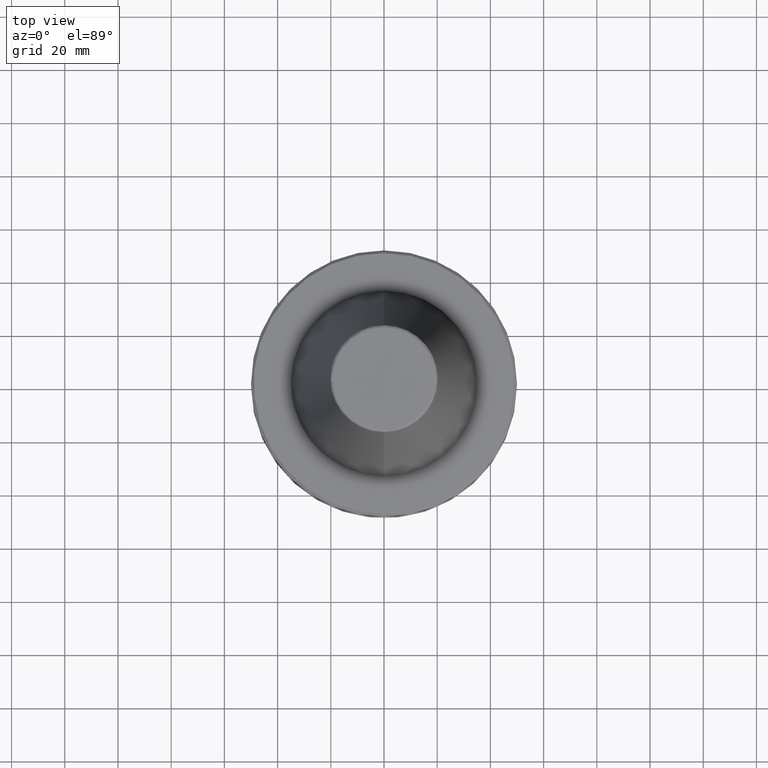
[diagram: clean part render]
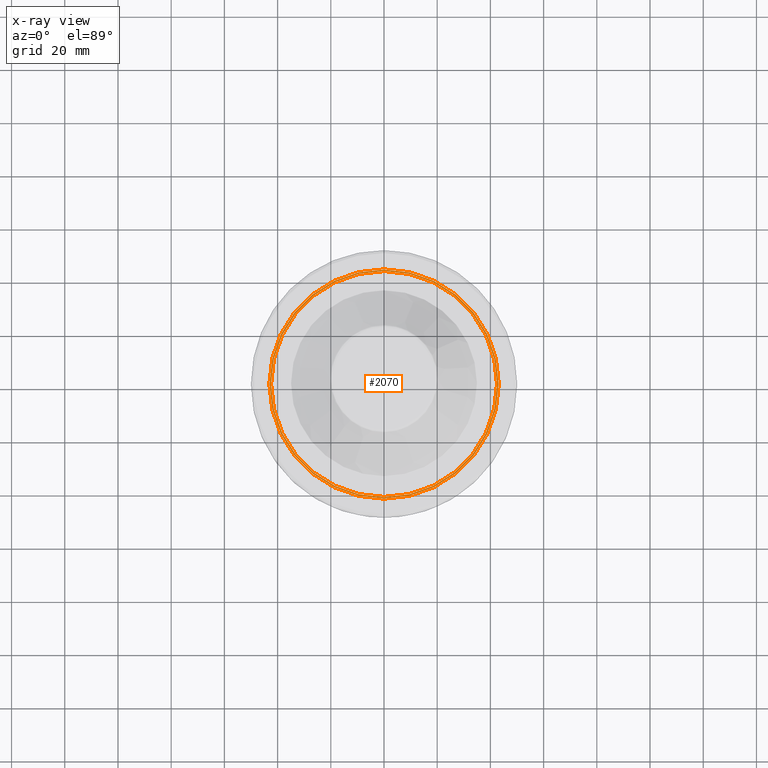
[diagram: x-ray — body ghosted, one internal face saturated and labeled with its STEP entity id]
A machine part, top view, then the same camera in x-ray: the body is ghosted and one INTERNAL B-rep face — a face not visible from any outside direction — is saturated and labeled: STEP entity #2070.
In plain terms, the highlighted planar face has unit normal (0, 0, 1).
Its self-contained STEP definition (entity closure, byte-faithful):
#57 = AXIS2_PLACEMENT_3D ( 'NONE', #2745, #2744, #2741 ) ;
#191 = EDGE_LOOP ( 'NONE', ( #2027, #1494 ) ) ;
#336 = VERTEX_POINT ( 'NONE', #1550 ) ;
#341 = ORIENTED_EDGE ( 'NONE', *, *, #2669, .F. ) ;
#468 = DIRECTION ( 'NONE',  ( 1.000000000000000000, 0.0000000000000000000, -0.0000000000000000000 ) ) ;
#487 = VERTEX_POINT ( 'NONE', #1766 ) ;
#708 = CIRCLE ( 'NONE', #2224, 43.07217782649103600 ) ;
#817 = AXIS2_PLACEMENT_3D ( 'NONE', #849, #848, #847 ) ;
#840 = DIRECTION ( 'NONE',  ( 1.000000000000000000, 0.0000000000000000000, 0.0000000000000000000 ) ) ;
#841 = DIRECTION ( 'NONE',  ( -0.0000000000000000000, -0.0000000000000000000, -1.000000000000000000 ) ) ;
#843 = CARTESIAN_POINT ( 'NONE',  ( 0.0000000000000000000, 0.0000000000000000000, -19.70000000000001000 ) ) ;
#847 = DIRECTION ( 'NONE',  ( 1.000000000000000000, 0.0000000000000000000, 0.0000000000000000000 ) ) ;
#848 = DIRECTION ( 'NONE',  ( -0.0000000000000000000, -0.0000000000000000000, -1.000000000000000000 ) ) ;
#849 = CARTESIAN_POINT ( 'NONE',  ( 0.0000000000000000000, 0.0000000000000000000, -19.70000000000001000 ) ) ;
#893 = CIRCLE ( 'NONE', #57, 43.07217782649103600 ) ;
#974 = CARTESIAN_POINT ( 'NONE',  ( -42.50000000000000000, 5.204748896376250900E-015, -19.70000000000001000 ) ) ;
#978 = VERTEX_POINT ( 'NONE', #974 ) ;
#1018 = DIRECTION ( 'NONE',  ( 0.0000000000000000000, 0.0000000000000000000, 1.000000000000000000 ) ) ;
#1024 = CIRCLE ( 'NONE', #817, 42.50000000000000000 ) ;
#1100 = EDGE_CURVE ( 'NONE', #2229, #978, #1024, .T. ) ;
#1102 = EDGE_CURVE ( 'NONE', #978, #2229, #2686, .T. ) ;
#1119 = FACE_OUTER_BOUND ( 'NONE', #1640, .T. ) ;
#1164 = AXIS2_PLACEMENT_3D ( 'NONE', #843, #841, #840 ) ;
#1379 = ORIENTED_EDGE ( 'NONE', *, *, #2114, .F. ) ;
#1494 = ORIENTED_EDGE ( 'NONE', *, *, #1102, .F. ) ;
#1550 = CARTESIAN_POINT ( 'NONE',  ( -43.07217782649103600, 5.699027233244276000E-015, -19.70000000000001000 ) ) ;
#1640 = EDGE_LOOP ( 'NONE', ( #341, #1379 ) ) ;
#1675 = DIRECTION ( 'NONE',  ( 1.000000000000000000, 0.0000000000000000000, 0.0000000000000000000 ) ) ;
#1677 = DIRECTION ( 'NONE',  ( 0.0000000000000000000, 0.0000000000000000000, 1.000000000000000000 ) ) ;
#1684 = CARTESIAN_POINT ( 'NONE',  ( 0.0000000000000000000, 0.0000000000000000000, -19.70000000000001000 ) ) ;
#1766 = CARTESIAN_POINT ( 'NONE',  ( 43.07217782649103600, 0.0000000000000000000, -19.70000000000001000 ) ) ;
#1913 = AXIS2_PLACEMENT_3D ( 'NONE', #2653, #1018, #468 ) ;
#2027 = ORIENTED_EDGE ( 'NONE', *, *, #1100, .F. ) ;
#2070 = ADVANCED_FACE ( 'NONE', ( #1119, #2320 ), #2599, .F. ) ;
#2114 = EDGE_CURVE ( 'NONE', #336, #487, #893, .T. ) ;
#2224 = AXIS2_PLACEMENT_3D ( 'NONE', #1684, #1677, #1675 ) ;
#2229 = VERTEX_POINT ( 'NONE', #2446 ) ;
#2320 = FACE_BOUND ( 'NONE', #191, .T. ) ;
#2446 = CARTESIAN_POINT ( 'NONE',  ( 42.50000000000000000, 0.0000000000000000000, -19.70000000000001000 ) ) ;
#2599 = PLANE ( 'NONE',  #1913 ) ;
#2653 = CARTESIAN_POINT ( 'NONE',  ( 0.0000000000000000000, 43.07217782649103600, -19.70000000000000300 ) ) ;
#2669 = EDGE_CURVE ( 'NONE', #487, #336, #708, .T. ) ;
#2686 = CIRCLE ( 'NONE', #1164, 42.50000000000000000 ) ;
#2741 = DIRECTION ( 'NONE',  ( 1.000000000000000000, 0.0000000000000000000, 0.0000000000000000000 ) ) ;
#2744 = DIRECTION ( 'NONE',  ( 0.0000000000000000000, 0.0000000000000000000, 1.000000000000000000 ) ) ;
#2745 = CARTESIAN_POINT ( 'NONE',  ( 0.0000000000000000000, 0.0000000000000000000, -19.70000000000001000 ) ) ;